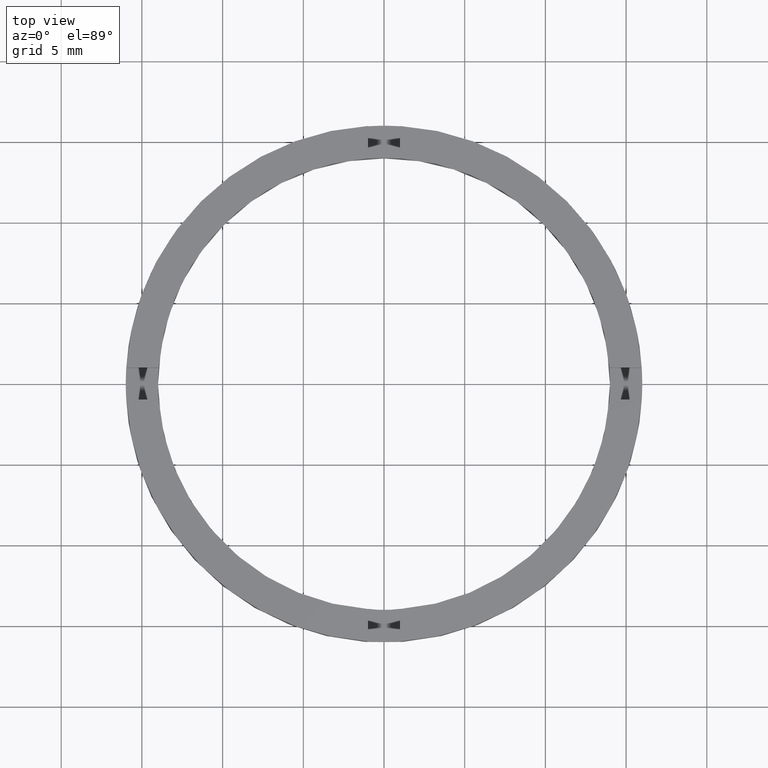
[diagram: clean part render]
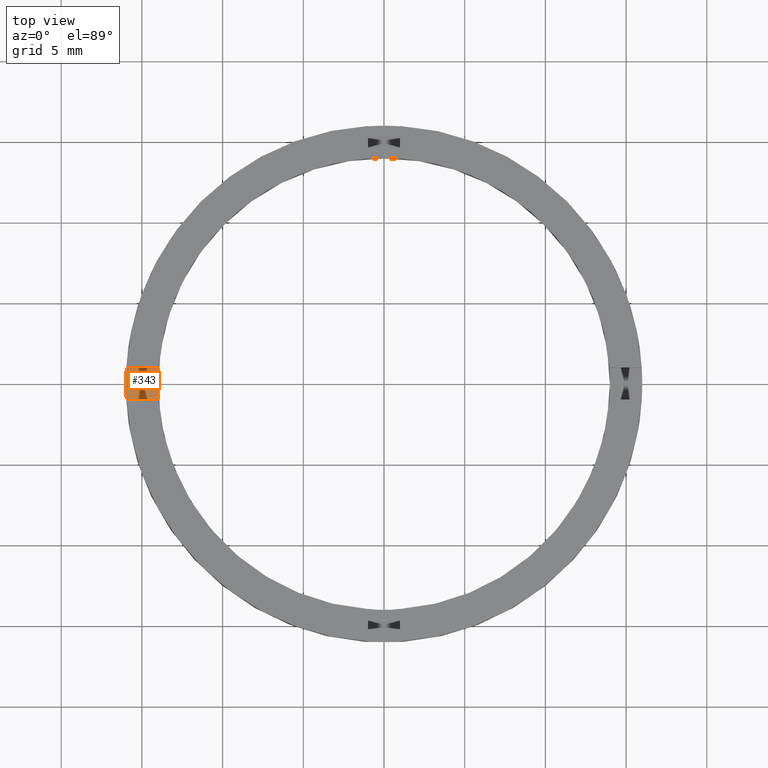
[diagram: same view with one face highlighted and labeled with its STEP entity id]
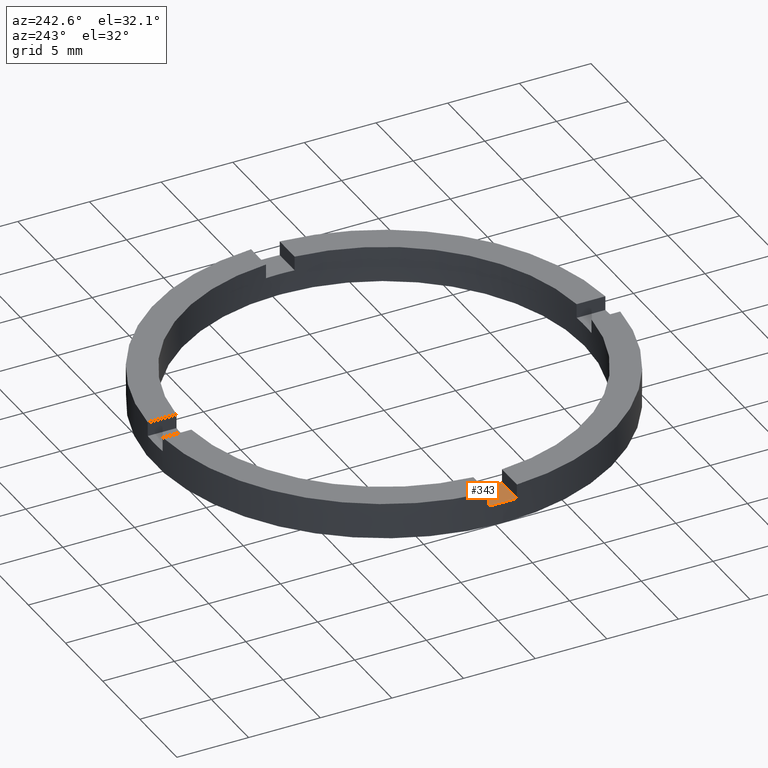
[diagram: same view with one face highlighted and labeled with its STEP entity id]
A machine part, top view. The second image highlights one B-rep face of the part: STEP entity #343.
A second angle (auxiliary view) of the same face is appended — the face is thin or edge-on in the first view.
In plain terms, the highlighted planar face has unit normal (0, 0, 1).
Its self-contained STEP definition (entity closure, byte-faithful):
#5 = CARTESIAN_POINT ( 'NONE',  ( -15.96871942267131317, 0.9999999999999767963, 1.500000000000000000 ) ) ;
#13 = DIRECTION ( 'NONE',  ( 1.000000000000000000, 0.000000000000000000, 0.000000000000000000 ) ) ;
#15 = CARTESIAN_POINT ( 'NONE',  ( 0.000000000000000000, 0.000000000000000000, 1.500000000000000000 ) ) ;
#38 = CARTESIAN_POINT ( 'NONE',  ( -6.000000000000185629, -1.000000000000021538, 1.500000000000000000 ) ) ;
#41 = EDGE_CURVE ( 'NONE', #98, #115, #717, .T. ) ;
#64 = AXIS2_PLACEMENT_3D ( 'NONE', #413, #514, #13 ) ;
#78 = DIRECTION ( 'NONE',  ( -1.000000000000000000, -1.734723475976807341E-16, 0.000000000000000000 ) ) ;
#88 = AXIS2_PLACEMENT_3D ( 'NONE', #527, #518, #261 ) ;
#89 = VECTOR ( 'NONE', #510, 1000.000000000000000 ) ;
#90 = LINE ( 'NONE', #38, #89 ) ;
#94 = ORIENTED_EDGE ( 'NONE', *, *, #580, .F. ) ;
#98 = VERTEX_POINT ( 'NONE', #314 ) ;
#103 = CARTESIAN_POINT ( 'NONE',  ( -14.00000000000000000, 0.000000000000000000, 1.500000000000000000 ) ) ;
#115 = VERTEX_POINT ( 'NONE', #5 ) ;
#127 = ORIENTED_EDGE ( 'NONE', *, *, #517, .F. ) ;
#144 = EDGE_LOOP ( 'NONE', ( #503, #352, #766, #127, #94, #757 ) ) ;
#146 = CARTESIAN_POINT ( 'NONE',  ( 0.000000000000000000, 0.000000000000000000, 1.500000000000000000 ) ) ;
#191 = CARTESIAN_POINT ( 'NONE',  ( 0.000000000000000000, 0.000000000000000000, 1.500000000000000000 ) ) ;
#200 = CIRCLE ( 'NONE', #774, 16.00000000000000000 ) ;
#231 = EDGE_CURVE ( 'NONE', #337, #363, #355, .T. ) ;
#261 = DIRECTION ( 'NONE',  ( 1.000000000000000000, 0.000000000000000000, 0.000000000000000000 ) ) ;
#277 = DIRECTION ( 'NONE',  ( 1.000000000000000000, 0.000000000000000000, 0.000000000000000000 ) ) ;
#314 = CARTESIAN_POINT ( 'NONE',  ( -13.96424004376894246, 0.9999999999999772404, 1.500000000000000000 ) ) ;
#337 = VERTEX_POINT ( 'NONE', #468 ) ;
#343 = ADVANCED_FACE ( 'NONE', ( #432 ), #782, .T. ) ;
#352 = ORIENTED_EDGE ( 'NONE', *, *, #231, .T. ) ;
#355 = CIRCLE ( 'NONE', #64, 16.00000000000000000 ) ;
#363 = VERTEX_POINT ( 'NONE', #438 ) ;
#364 = VERTEX_POINT ( 'NONE', #571 ) ;
#372 = DIRECTION ( 'NONE',  ( 0.000000000000000000, 0.000000000000000000, 1.000000000000000000 ) ) ;
#392 = DIRECTION ( 'NONE',  ( 0.000000000000000000, 0.000000000000000000, 1.000000000000000000 ) ) ;
#413 = CARTESIAN_POINT ( 'NONE',  ( 0.000000000000000000, 0.000000000000000000, 1.500000000000000000 ) ) ;
#415 = CARTESIAN_POINT ( 'NONE',  ( -6.000000000000185629, 0.9999999999999785727, 1.500000000000000000 ) ) ;
#417 = DIRECTION ( 'NONE',  ( 1.000000000000000000, 0.000000000000000000, 0.000000000000000000 ) ) ;
#432 = FACE_OUTER_BOUND ( 'NONE', #144, .T. ) ;
#438 = CARTESIAN_POINT ( 'NONE',  ( -15.96871942267130962, -1.000000000000023315, 1.500000000000000000 ) ) ;
#468 = CARTESIAN_POINT ( 'NONE',  ( -16.00000000000000000, 0.000000000000000000, 1.500000000000000000 ) ) ;
#503 = ORIENTED_EDGE ( 'NONE', *, *, #564, .T. ) ;
#510 = DIRECTION ( 'NONE',  ( 1.000000000000000000, 1.734723475976807341E-16, -0.000000000000000000 ) ) ;
#514 = DIRECTION ( 'NONE',  ( 0.000000000000000000, 0.000000000000000000, 1.000000000000000000 ) ) ;
#517 = EDGE_CURVE ( 'NONE', #745, #364, #740, .T. ) ;
#518 = DIRECTION ( 'NONE',  ( 0.000000000000000000, 0.000000000000000000, 1.000000000000000000 ) ) ;
#527 = CARTESIAN_POINT ( 'NONE',  ( 0.000000000000000000, 0.000000000000000000, 1.500000000000000000 ) ) ;
#557 = DIRECTION ( 'NONE',  ( 0.000000000000000000, 0.000000000000000000, 1.000000000000000000 ) ) ;
#564 = EDGE_CURVE ( 'NONE', #115, #337, #200, .T. ) ;
#571 = CARTESIAN_POINT ( 'NONE',  ( -13.96424004376894068, -1.000000000000022871, 1.500000000000000000 ) ) ;
#580 = EDGE_CURVE ( 'NONE', #98, #745, #746, .T. ) ;
#581 = DIRECTION ( 'NONE',  ( 1.000000000000000000, 0.000000000000000000, -0.000000000000000000 ) ) ;
#592 = AXIS2_PLACEMENT_3D ( 'NONE', #15, #557, #417 ) ;
#677 = EDGE_CURVE ( 'NONE', #363, #364, #90, .T. ) ;
#717 = LINE ( 'NONE', #415, #724 ) ;
#724 = VECTOR ( 'NONE', #78, 1000.000000000000000 ) ;
#740 = CIRCLE ( 'NONE', #88, 14.00000000000000000 ) ;
#742 = AXIS2_PLACEMENT_3D ( 'NONE', #146, #372, #581 ) ;
#745 = VERTEX_POINT ( 'NONE', #103 ) ;
#746 = CIRCLE ( 'NONE', #592, 14.00000000000000000 ) ;
#757 = ORIENTED_EDGE ( 'NONE', *, *, #41, .T. ) ;
#766 = ORIENTED_EDGE ( 'NONE', *, *, #677, .T. ) ;
#774 = AXIS2_PLACEMENT_3D ( 'NONE', #191, #392, #277 ) ;
#782 = PLANE ( 'NONE',  #742 ) ;